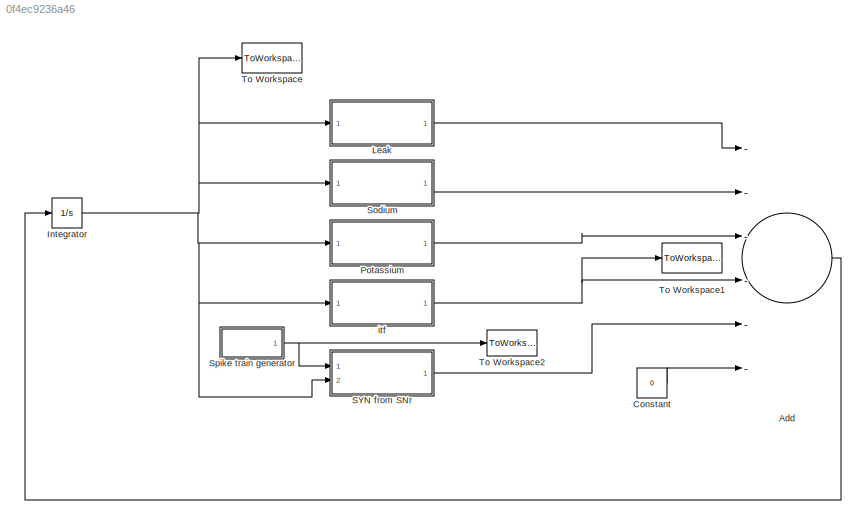
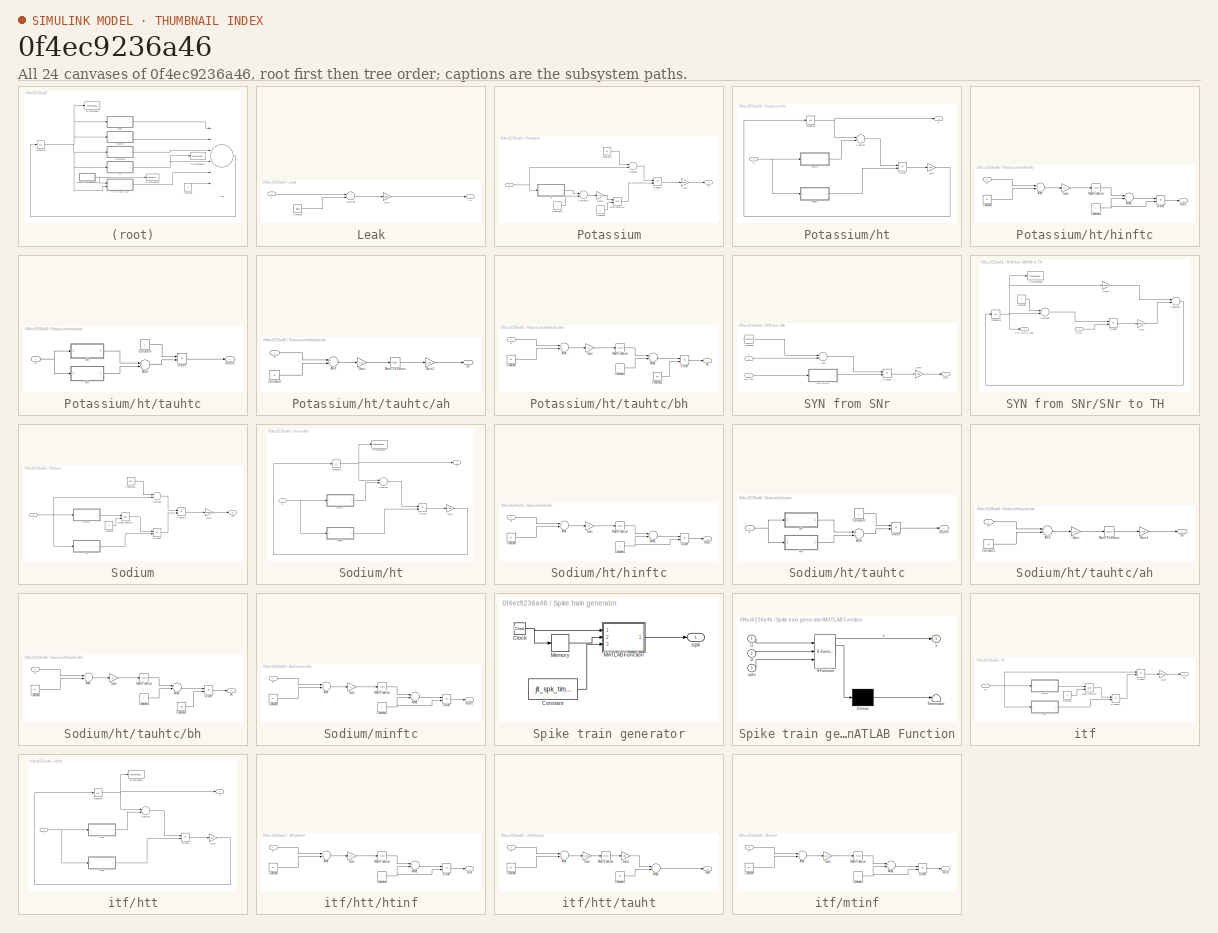
[diagram: thumbnail index - all 24 canvases of the model, root first then tree order]
MODEL slx_0f4ec9236a46
KIND model
CONFIG AbsTol = auto
CONFIG EnableMultiTasking = on
CONFIG FixedStep = stepsize
CONFIG MaxStep = stepsize
CONFIG MinStep = auto
CONFIG RelTol = 1e-2
CONFIG SampleTimeConstraint = Unconstrained
CONFIG Solver = ode4
CONFIG SolverName = ode4
CONFIG StartTime = 0.0
CONFIG StopTime = simtime
BLOCK [Sum] Add
  InputSameDT = off
  Inputs = ------
  OutDataTypeStr = Inherit: Inherit via internal rule
  Ports = [6, 1]
  SaturateOnIntegerOverflow = off
BLOCK [Constant] Constant
  Value = 0
BLOCK [Integrator] Integrator
  InitialCondition = vt0
  Ports = [1, 1]
BLOCK [SubSystem] Leak
  Ports = [1, 1]
  RequestExecContextInheritance = off
  Variant = off
BLOCK [Constant] Leak/Constant
  Value = eleak
BLOCK [Gain] Leak/Gain
  Gain = glbar
  OutDataTypeStr = Inherit: Inherit via internal rule
  ParamDataTypeStr = Inherit: Inherit via internal rule
  SaturateOnIntegerOverflow = off
BLOCK [Sum] Leak/Subtract
  InputSameDT = off
  Inputs = +-
  OutDataTypeStr = Inherit: Inherit via internal rule
  Ports = [2, 1]
  SaturateOnIntegerOverflow = off
BLOCK [Outport] Leak/ilf
  IconDisplay = Port number
BLOCK [Inport] Leak/v
  IconDisplay = Port number
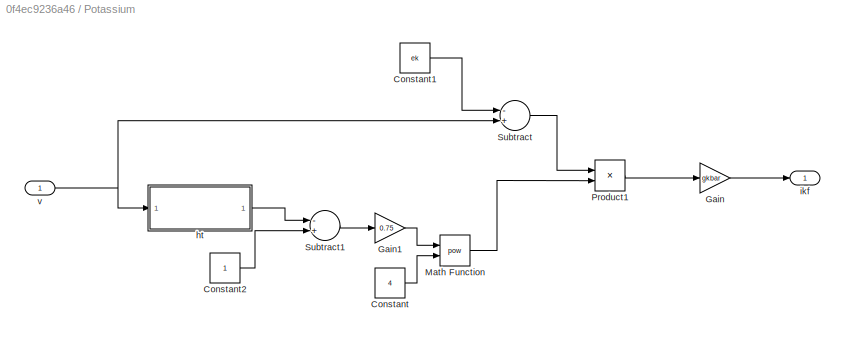
BLOCK [SubSystem] Potassium
  Ports = [1, 1]
  RequestExecContextInheritance = off
  Variant = off
BLOCK [Constant] Potassium/Constant
  Value = 4
BLOCK [Constant] Potassium/Constant1
  Value = ek
BLOCK [Constant] Potassium/Constant2
BLOCK [Gain] Potassium/Gain
  Gain = gkbar
  OutDataTypeStr = Inherit: Inherit via internal rule
  ParamDataTypeStr = Inherit: Inherit via internal rule
  SaturateOnIntegerOverflow = off
BLOCK [Gain] Potassium/Gain1
  Gain = 0.75
  OutDataTypeStr = Inherit: Inherit via internal rule
  ParamDataTypeStr = Inherit: Inherit via internal rule
  SaturateOnIntegerOverflow = off
BLOCK [Math] Potassium/Math Function
  Operator = pow
  Ports = [2, 1]
BLOCK [Product] Potassium/Product1
  InputSameDT = off
  OutDataTypeStr = Inherit: Inherit via internal rule
  Ports = [2, 1]
  RndMeth = Floor
  SaturateOnIntegerOverflow = off
BLOCK [Sum] Potassium/Subtract
  InputSameDT = off
  Inputs = -+
  OutDataTypeStr = Inherit: Inherit via internal rule
  Ports = [2, 1]
  SaturateOnIntegerOverflow = off
BLOCK [Sum] Potassium/Subtract1
  InputSameDT = off
  Inputs = -+
  OutDataTypeStr = Inherit: Inherit via internal rule
  Ports = [2, 1]
  SaturateOnIntegerOverflow = off
BLOCK [SubSystem] Potassium/ht
  Ports = [1, 1]
  RequestExecContextInheritance = off
  Variant = off
BLOCK [Product] Potassium/ht/Divide
  InputSameDT = off
  Inputs = */
  OutDataTypeStr = Inherit: Inherit via internal rule
  Ports = [2, 1]
  RndMeth = Floor
  SaturateOnIntegerOverflow = off
BLOCK [Gain] Potassium/ht/Gain
  Gain = tadj
  OutDataTypeStr = Inherit: Inherit via internal rule
  ParamDataTypeStr = Inherit: Inherit via internal rule
  SaturateOnIntegerOverflow = off
BLOCK [Integrator] Potassium/ht/Integrator
  InitialCondition = ht0
  Ports = [1, 1]
BLOCK [Sum] Potassium/ht/Subtract
  InputSameDT = off
  Inputs = -+
  OutDataTypeStr = Inherit: Inherit via internal rule
  Ports = [2, 1]
  SaturateOnIntegerOverflow = off
BLOCK [Outport] Potassium/ht/h
  IconDisplay = Port number
BLOCK [SubSystem] Potassium/ht/hinftc
  Ports = [1, 1]
  RequestExecContextInheritance = off
  Variant = off
BLOCK [Sum] Potassium/ht/hinftc/Add
  InputSameDT = off
  OutDataTypeStr = Inherit: Inherit via internal rule
  Ports = [2, 1]
  SaturateOnIntegerOverflow = off
BLOCK [Sum] Potassium/ht/hinftc/Add1
  InputSameDT = off
  OutDataTypeStr = Inherit: Inherit via internal rule
  Ports = [2, 1]
  SaturateOnIntegerOverflow = off
BLOCK [Constant] Potassium/ht/hinftc/Constant
  Value = 41
BLOCK [Constant] Potassium/ht/hinftc/Constant1
BLOCK [Product] Potassium/ht/hinftc/Divide
  InputSameDT = off
  Inputs = /*
  OutDataTypeStr = Inherit: Inherit via internal rule
  Ports = [2, 1]
  RndMeth = Floor
  SaturateOnIntegerOverflow = off
BLOCK [Gain] Potassium/ht/hinftc/Gain
  Gain = 1/4
  OutDataTypeStr = Inherit: Inherit via internal rule
  ParamDataTypeStr = Inherit: Inherit via internal rule
  SaturateOnIntegerOverflow = off
BLOCK [Math] Potassium/ht/hinftc/Math Function
  Ports = [1, 1]
BLOCK [Outport] Potassium/ht/hinftc/hinftc
  IconDisplay = Port number
BLOCK [Inport] Potassium/ht/hinftc/v
  IconDisplay = Port number
BLOCK [SubSystem] Potassium/ht/tauhtc
  Ports = [1, 1]
  RequestExecContextInheritance = off
  Variant = off
BLOCK [Sum] Potassium/ht/tauhtc/Add
  InputSameDT = off
  OutDataTypeStr = Inherit: Inherit via internal rule
  Ports = [2, 1]
  SaturateOnIntegerOverflow = off
BLOCK [Constant] Potassium/ht/tauhtc/Constant
BLOCK [Product] Potassium/ht/tauhtc/Divide
  InputSameDT = off
  Inputs = */
  OutDataTypeStr = Inherit: Inherit via internal rule
  Ports = [2, 1]
  RndMeth = Floor
  SaturateOnIntegerOverflow = off
BLOCK [SubSystem] Potassium/ht/tauhtc/ah
  Ports = [1, 1]
  RequestExecContextInheritance = off
  Variant = off
BLOCK [Sum] Potassium/ht/tauhtc/ah/Add
  InputSameDT = off
  OutDataTypeStr = Inherit: Inherit via internal rule
  Ports = [2, 1]
  SaturateOnIntegerOverflow = off
BLOCK [Constant] Potassium/ht/tauhtc/ah/Constant
  Value = 46
BLOCK [Gain] Potassium/ht/tauhtc/ah/Gain
  Gain = -1/18
  OutDataTypeStr = Inherit: Inherit via internal rule
  ParamDataTypeStr = Inherit: Inherit via internal rule
  SaturateOnIntegerOverflow = off
BLOCK [Gain] Potassium/ht/tauhtc/ah/Gain1
  Gain = 0.128
  OutDataTypeStr = Inherit: Inherit via internal rule
  ParamDataTypeStr = Inherit: Inherit via internal rule
  SaturateOnIntegerOverflow = off
BLOCK [Math] Potassium/ht/tauhtc/ah/Math Function
  Ports = [1, 1]
BLOCK [Outport] Potassium/ht/tauhtc/ah/ah
  IconDisplay = Port number
BLOCK [Inport] Potassium/ht/tauhtc/ah/v
  IconDisplay = Port number
BLOCK [SubSystem] Potassium/ht/tauhtc/bh
  Ports = [1, 1]
  RequestExecContextInheritance = off
  Variant = off
BLOCK [Sum] Potassium/ht/tauhtc/bh/Add
  InputSameDT = off
  OutDataTypeStr = Inherit: Inherit via internal rule
  Ports = [2, 1]
  SaturateOnIntegerOverflow = off
BLOCK [Sum] Potassium/ht/tauhtc/bh/Add1
  InputSameDT = off
  OutDataTypeStr = Inherit: Inherit via internal rule
  Ports = [2, 1]
  SaturateOnIntegerOverflow = off
BLOCK [Constant] Potassium/ht/tauhtc/bh/Constant
  Value = 23
BLOCK [Constant] Potassium/ht/tauhtc/bh/Constant1
BLOCK [Constant] Potassium/ht/tauhtc/bh/Constant2
  Value = apr
BLOCK [Product] Potassium/ht/tauhtc/bh/Divide
  InputSameDT = off
  Inputs = /*
  OutDataTypeStr = Inherit: Inherit via internal rule
  Ports = [2, 1]
  RndMeth = Floor
  SaturateOnIntegerOverflow = off
BLOCK [Gain] Potassium/ht/tauhtc/bh/Gain
  Gain = -1/5
  OutDataTypeStr = Inherit: Inherit via internal rule
  ParamDataTypeStr = Inherit: Inherit via internal rule
  SaturateOnIntegerOverflow = off
BLOCK [Math] Potassium/ht/tauhtc/bh/Math Function
  Ports = [1, 1]
BLOCK [Outport] Potassium/ht/tauhtc/bh/bh
  IconDisplay = Port number
BLOCK [Inport] Potassium/ht/tauhtc/bh/v
  IconDisplay = Port number
BLOCK [Outport] Potassium/ht/tauhtc/tauhtc
  IconDisplay = Port number
BLOCK [Inport] Potassium/ht/tauhtc/v
  IconDisplay = Port number
BLOCK [Inport] Potassium/ht/v
  IconDisplay = Port number
BLOCK [Outport] Potassium/ikf
  IconDisplay = Port number
BLOCK [Inport] Potassium/v
  IconDisplay = Port number
BLOCK [SubSystem] SYN from SNr
  Ports = [2, 1]
  RequestExecContextInheritance = off
  Variant = off
BLOCK [Sum] SYN from SNr/Add1
  InputSameDT = off
  Inputs = -+
  OutDataTypeStr = Inherit: Inherit via internal rule
  Ports = [2, 1]
  SaturateOnIntegerOverflow = off
BLOCK [Constant] SYN from SNr/Constant
  Value = vsynSNrtoTH
BLOCK [Gain] SYN from SNr/Gain
  Gain = gsynSNrtoTH
  OutDataTypeStr = Inherit: Inherit via internal rule
  ParamDataTypeStr = Inherit: Inherit via internal rule
  SaturateOnIntegerOverflow = off
BLOCK [Outport] SYN from SNr/Out1
  IconDisplay = Port number
BLOCK [Product] SYN from SNr/Product
  InputSameDT = off
  OutDataTypeStr = Inherit: Inherit via internal rule
  Ports = [2, 1]
  RndMeth = Floor
  SaturateOnIntegerOverflow = off
BLOCK [Inport] SYN from SNr/SNr NT
  IconDisplay = Port number
BLOCK [SubSystem] SYN from SNr/SNr to TH
  Ports = [1, 1]
  RequestExecContextInheritance = off
  Variant = off
BLOCK [Constant] SYN from SNr/SNr to TH/Constant
BLOCK [Gain] SYN from SNr/SNr to TH/Gain
  Gain = alphaSNrtoTH
  OutDataTypeStr = Inherit: Inherit via internal rule
  ParamDataTypeStr = Inherit: Inherit via internal rule
  SaturateOnIntegerOverflow = off
BLOCK [Gain] SYN from SNr/SNr to TH/Gain1
  Gain = betaSNrtoTH
  OutDataTypeStr = Inherit: Inherit via internal rule
  ParamDataTypeStr = Inherit: Inherit via internal rule
  SaturateOnIntegerOverflow = off
BLOCK [Integrator] SYN from SNr/SNr to TH/Integrator
  InitialCondition = s0SNrtoTH
  Ports = [1, 1]
BLOCK [Product] SYN from SNr/SNr to TH/Product
  InputSameDT = off
  OutDataTypeStr = Inherit: Inherit via internal rule
  Ports = [2, 1]
  RndMeth = Floor
  SaturateOnIntegerOverflow = off
BLOCK [Outport] SYN from SNr/SNr to TH/SNr to TH cond
  IconDisplay = Port number
BLOCK [Sum] SYN from SNr/SNr to TH/Subtract
  InputSameDT = off
  Inputs = +-
  OutDataTypeStr = Inherit: Inherit via internal rule
  Ports = [2, 1]
  SaturateOnIntegerOverflow = off
BLOCK [Sum] SYN from SNr/SNr to TH/Subtract2
  InputSameDT = off
  Inputs = -+
  OutDataTypeStr = Inherit: Inherit via internal rule
  Ports = [2, 1]
  SaturateOnIntegerOverflow = off
BLOCK [ToWorkspace] SYN from SNr/SNr to TH/To Workspace
  MaxDataPoints = inf
  Ports = [1]
  SampleTime = -1
  SaveFormat = Structure With Time
  VariableName = s_SNrtoTH
BLOCK [Inport] SYN from SNr/SNr to TH/s SNr
  IconDisplay = Port number
BLOCK [Inport] SYN from SNr/v
  IconDisplay = Port number
  Port = 2
BLOCK [SubSystem] Sodium
  Ports = [1, 1]
  RequestExecContextInheritance = off
  Variant = off
BLOCK [Constant] Sodium/Constant
  Value = 3
BLOCK [Constant] Sodium/Constant1
  Value = ena
BLOCK [Gain] Sodium/Gain
  Gain = gnabar
  OutDataTypeStr = Inherit: Inherit via internal rule
  ParamDataTypeStr = Inherit: Inherit via internal rule
  SaturateOnIntegerOverflow = off
BLOCK [Math] Sodium/Math Function
  Operator = pow
  Ports = [2, 1]
BLOCK [Product] Sodium/Product
  InputSameDT = off
  OutDataTypeStr = Inherit: Inherit via internal rule
  Ports = [2, 1]
  RndMeth = Floor
  SaturateOnIntegerOverflow = off
BLOCK [Product] Sodium/Product1
  InputSameDT = off
  OutDataTypeStr = Inherit: Inherit via internal rule
  Ports = [2, 1]
  RndMeth = Floor
  SaturateOnIntegerOverflow = off
BLOCK [Sum] Sodium/Subtract
  InputSameDT = off
  Inputs = -+
  OutDataTypeStr = Inherit: Inherit via internal rule
  Ports = [2, 1]
  SaturateOnIntegerOverflow = off
BLOCK [SubSystem] Sodium/ht
  Ports = [1, 1]
  RequestExecContextInheritance = off
  Variant = off
BLOCK [Product] Sodium/ht/Divide
  InputSameDT = off
  Inputs = */
  OutDataTypeStr = Inherit: Inherit via internal rule
  Ports = [2, 1]
  RndMeth = Floor
  SaturateOnIntegerOverflow = off
BLOCK [Gain] Sodium/ht/Gain
  Gain = tadj
  OutDataTypeStr = Inherit: Inherit via internal rule
  ParamDataTypeStr = Inherit: Inherit via internal rule
  SaturateOnIntegerOverflow = off
BLOCK [Integrator] Sodium/ht/Integrator
  InitialCondition = ht0
  Ports = [1, 1]
BLOCK [Sum] Sodium/ht/Subtract
  InputSameDT = off
  Inputs = -+
  OutDataTypeStr = Inherit: Inherit via internal rule
  Ports = [2, 1]
  SaturateOnIntegerOverflow = off
BLOCK [ToWorkspace] Sodium/ht/To Workspace
  MaxDataPoints = inf
  Ports = [1]
  SampleTime = -1
  SaveFormat = Structure With Time
  VariableName = ht
BLOCK [Outport] Sodium/ht/h
  IconDisplay = Port number
BLOCK [SubSystem] Sodium/ht/hinftc
  Ports = [1, 1]
  RequestExecContextInheritance = off
  Variant = off
BLOCK [Sum] Sodium/ht/hinftc/Add
  InputSameDT = off
  OutDataTypeStr = Inherit: Inherit via internal rule
  Ports = [2, 1]
  SaturateOnIntegerOverflow = off
BLOCK [Sum] Sodium/ht/hinftc/Add1
  InputSameDT = off
  OutDataTypeStr = Inherit: Inherit via internal rule
  Ports = [2, 1]
  SaturateOnIntegerOverflow = off
BLOCK [Constant] Sodium/ht/hinftc/Constant
  Value = 41
BLOCK [Constant] Sodium/ht/hinftc/Constant1
BLOCK [Product] Sodium/ht/hinftc/Divide
  InputSameDT = off
  Inputs = /*
  OutDataTypeStr = Inherit: Inherit via internal rule
  Ports = [2, 1]
  RndMeth = Floor
  SaturateOnIntegerOverflow = off
BLOCK [Gain] Sodium/ht/hinftc/Gain
  Gain = 1/4
  OutDataTypeStr = Inherit: Inherit via internal rule
  ParamDataTypeStr = Inherit: Inherit via internal rule
  SaturateOnIntegerOverflow = off
BLOCK [Math] Sodium/ht/hinftc/Math Function
  Ports = [1, 1]
BLOCK [Outport] Sodium/ht/hinftc/hinftc
  IconDisplay = Port number
BLOCK [Inport] Sodium/ht/hinftc/v
  IconDisplay = Port number
BLOCK [SubSystem] Sodium/ht/tauhtc
  Ports = [1, 1]
  RequestExecContextInheritance = off
  Variant = off
BLOCK [Sum] Sodium/ht/tauhtc/Add
  InputSameDT = off
  OutDataTypeStr = Inherit: Inherit via internal rule
  Ports = [2, 1]
  SaturateOnIntegerOverflow = off
BLOCK [Constant] Sodium/ht/tauhtc/Constant
BLOCK [Product] Sodium/ht/tauhtc/Divide
  InputSameDT = off
  Inputs = */
  OutDataTypeStr = Inherit: Inherit via internal rule
  Ports = [2, 1]
  RndMeth = Floor
  SaturateOnIntegerOverflow = off
BLOCK [SubSystem] Sodium/ht/tauhtc/ah
  Ports = [1, 1]
  RequestExecContextInheritance = off
  Variant = off
BLOCK [Sum] Sodium/ht/tauhtc/ah/Add
  InputSameDT = off
  OutDataTypeStr = Inherit: Inherit via internal rule
  Ports = [2, 1]
  SaturateOnIntegerOverflow = off
BLOCK [Constant] Sodium/ht/tauhtc/ah/Constant
  Value = 46
BLOCK [Gain] Sodium/ht/tauhtc/ah/Gain
  Gain = -1/18
  OutDataTypeStr = Inherit: Inherit via internal rule
  ParamDataTypeStr = Inherit: Inherit via internal rule
  SaturateOnIntegerOverflow = off
BLOCK [Gain] Sodium/ht/tauhtc/ah/Gain1
  Gain = 0.128
  OutDataTypeStr = Inherit: Inherit via internal rule
  ParamDataTypeStr = Inherit: Inherit via internal rule
  SaturateOnIntegerOverflow = off
BLOCK [Math] Sodium/ht/tauhtc/ah/Math Function
  Ports = [1, 1]
BLOCK [Outport] Sodium/ht/tauhtc/ah/ah
  IconDisplay = Port number
BLOCK [Inport] Sodium/ht/tauhtc/ah/v
  IconDisplay = Port number
BLOCK [SubSystem] Sodium/ht/tauhtc/bh
  Ports = [1, 1]
  RequestExecContextInheritance = off
  Variant = off
BLOCK [Sum] Sodium/ht/tauhtc/bh/Add
  InputSameDT = off
  OutDataTypeStr = Inherit: Inherit via internal rule
  Ports = [2, 1]
  SaturateOnIntegerOverflow = off
BLOCK [Sum] Sodium/ht/tauhtc/bh/Add1
  InputSameDT = off
  OutDataTypeStr = Inherit: Inherit via internal rule
  Ports = [2, 1]
  SaturateOnIntegerOverflow = off
BLOCK [Constant] Sodium/ht/tauhtc/bh/Constant
  Value = 23
BLOCK [Constant] Sodium/ht/tauhtc/bh/Constant1
BLOCK [Constant] Sodium/ht/tauhtc/bh/Constant2
  Value = apr
BLOCK [Product] Sodium/ht/tauhtc/bh/Divide
  InputSameDT = off
  Inputs = /*
  OutDataTypeStr = Inherit: Inherit via internal rule
  Ports = [2, 1]
  RndMeth = Floor
  SaturateOnIntegerOverflow = off
BLOCK [Gain] Sodium/ht/tauhtc/bh/Gain
  Gain = -1/5
  OutDataTypeStr = Inherit: Inherit via internal rule
  ParamDataTypeStr = Inherit: Inherit via internal rule
  SaturateOnIntegerOverflow = off
BLOCK [Math] Sodium/ht/tauhtc/bh/Math Function
  Ports = [1, 1]
BLOCK [Outport] Sodium/ht/tauhtc/bh/bh
  IconDisplay = Port number
BLOCK [Inport] Sodium/ht/tauhtc/bh/v
  IconDisplay = Port number
BLOCK [Outport] Sodium/ht/tauhtc/tauhtc
  IconDisplay = Port number
BLOCK [Inport] Sodium/ht/tauhtc/v
  IconDisplay = Port number
BLOCK [Inport] Sodium/ht/v
  IconDisplay = Port number
BLOCK [Outport] Sodium/inaf
  IconDisplay = Port number
BLOCK [SubSystem] Sodium/minftc
  Ports = [1, 1]
  RequestExecContextInheritance = off
  Variant = off
BLOCK [Sum] Sodium/minftc/Add
  InputSameDT = off
  OutDataTypeStr = Inherit: Inherit via internal rule
  Ports = [2, 1]
  SaturateOnIntegerOverflow = off
BLOCK [Sum] Sodium/minftc/Add1
  InputSameDT = off
  OutDataTypeStr = Inherit: Inherit via internal rule
  Ports = [2, 1]
  SaturateOnIntegerOverflow = off
BLOCK [Constant] Sodium/minftc/Constant
  Value = 37
BLOCK [Constant] Sodium/minftc/Constant1
BLOCK [Product] Sodium/minftc/Divide
  InputSameDT = off
  Inputs = /*
  OutDataTypeStr = Inherit: Inherit via internal rule
  Ports = [2, 1]
  RndMeth = Floor
  SaturateOnIntegerOverflow = off
BLOCK [Gain] Sodium/minftc/Gain
  Gain = -1/7
  OutDataTypeStr = Inherit: Inherit via internal rule
  ParamDataTypeStr = Inherit: Inherit via internal rule
  SaturateOnIntegerOverflow = off
BLOCK [Math] Sodium/minftc/Math Function
  Ports = [1, 1]
BLOCK [Outport] Sodium/minftc/minftc
  IconDisplay = Port number
BLOCK [Inport] Sodium/minftc/v
  IconDisplay = Port number
BLOCK [Inport] Sodium/v
  IconDisplay = Port number
BLOCK [SubSystem] Spike train generator
  Ports = [0, 1]
  RequestExecContextInheritance = off
  Variant = off
BLOCK [Clock] Spike train generator/Clock
BLOCK [Constant] Spike train generator/Constant
  Value = jit_spk_times
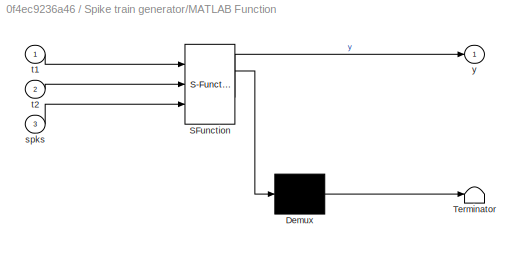
BLOCK [SubSystem] Spike train generator/MATLAB Function
  ErrorFcn = Stateflow.Translate.translate
  PermitHierarchicalResolution = ExplicitOnly
  Ports = [3, 1]
  RequestExecContextInheritance = off
  SFBlockType = MATLAB Function
  TreatAsAtomicUnit = on
  Variant = off
BLOCK [Demux] Spike train generator/MATLAB Function/ Demux 
  Outputs = 1
  Ports = [1, 1]
BLOCK [S-Function] Spike train generator/MATLAB Function/ SFunction 
  EnableBusSupport = off
  FunctionName = sf_sfun
  PortCounts = [3 2]
  Ports = [3, 2]
  SFcnIsStateOwnerBlock = off
  SFunctionDeploymentMode = off
  Tag = Stateflow S-Function TC_RT2004_pois_CX_SNr 2
BLOCK [Terminator] Spike train generator/MATLAB Function/ Terminator 
BLOCK [Inport] Spike train generator/MATLAB Function/spks
  IconDisplay = Port number
  Port = 3
BLOCK [Inport] Spike train generator/MATLAB Function/t1
  IconDisplay = Port number
BLOCK [Inport] Spike train generator/MATLAB Function/t2
  IconDisplay = Port number
  Port = 2
BLOCK [Outport] Spike train generator/MATLAB Function/y
  IconDisplay = Port number
BLOCK [Memory] Spike train generator/Memory
BLOCK [Outport] Spike train generator/spk
  IconDisplay = Port number
BLOCK [ToWorkspace] To Workspace
  MaxDataPoints = inf
  Ports = [1]
  SampleTime = -1
  SaveFormat = Structure With Time
  VariableName = vth
BLOCK [ToWorkspace] To Workspace1
  MaxDataPoints = inf
  Ports = [1]
  SampleTime = -1
  SaveFormat = Structure With Time
  VariableName = Ica
BLOCK [ToWorkspace] To Workspace2
  MaxDataPoints = inf
  Ports = [1]
  SampleTime = -1
  SaveFormat = Structure With Time
  VariableName = I_SNrtoTH
BLOCK [SubSystem] itf
  Ports = [1, 1]
  RequestExecContextInheritance = off
  Variant = off
BLOCK [Constant] itf/Constant
  Value = 2
BLOCK [Gain] itf/Gain
  Gain = gtbar
  OutDataTypeStr = Inherit: Inherit via internal rule
  ParamDataTypeStr = Inherit: Inherit via internal rule
  SaturateOnIntegerOverflow = off
BLOCK [Inport] itf/In1
  IconDisplay = Port number
BLOCK [Math] itf/Math Function
  Operator = pow
  Ports = [2, 1]
BLOCK [Product] itf/Product
  InputSameDT = off
  OutDataTypeStr = Inherit: Inherit via internal rule
  Ports = [2, 1]
  RndMeth = Floor
  SaturateOnIntegerOverflow = off
BLOCK [Product] itf/Product1
  InputSameDT = off
  OutDataTypeStr = Inherit: Inherit via internal rule
  Ports = [2, 1]
  RndMeth = Floor
  SaturateOnIntegerOverflow = off
BLOCK [SubSystem] itf/htt
  Ports = [1, 1]
  RequestExecContextInheritance = off
  Variant = off
BLOCK [Product] itf/htt/Divide
  InputSameDT = off
  Inputs = */
  OutDataTypeStr = Inherit: Inherit via internal rule
  Ports = [2, 1]
  RndMeth = Floor
  SaturateOnIntegerOverflow = off
BLOCK [Gain] itf/htt/Gain
  Gain = qht
  OutDataTypeStr = Inherit: Inherit via internal rule
  ParamDataTypeStr = Inherit: Inherit via internal rule
  SaturateOnIntegerOverflow = off
BLOCK [Integrator] itf/htt/Integrator
  InitialCondition = htt0
  Ports = [1, 1]
BLOCK [Sum] itf/htt/Subtract
  InputSameDT = off
  Inputs = -+
  OutDataTypeStr = Inherit: Inherit via internal rule
  Ports = [2, 1]
  SaturateOnIntegerOverflow = off
BLOCK [ToWorkspace] itf/htt/To Workspace
  MaxDataPoints = inf
  Ports = [1]
  SampleTime = -1
  SaveFormat = Structure With Time
  VariableName = htt
BLOCK [Outport] itf/htt/h
  IconDisplay = Port number
BLOCK [SubSystem] itf/htt/htinf
  Ports = [1, 1]
  RequestExecContextInheritance = off
  Variant = off
BLOCK [Sum] itf/htt/htinf/Add
  InputSameDT = off
  OutDataTypeStr = Inherit: Inherit via internal rule
  Ports = [2, 1]
  SaturateOnIntegerOverflow = off
BLOCK [Sum] itf/htt/htinf/Add1
  InputSameDT = off
  OutDataTypeStr = Inherit: Inherit via internal rule
  Ports = [2, 1]
  SaturateOnIntegerOverflow = off
BLOCK [Constant] itf/htt/htinf/Constant
  Value = 84
BLOCK [Constant] itf/htt/htinf/Constant1
BLOCK [Product] itf/htt/htinf/Divide
  InputSameDT = off
  Inputs = /*
  OutDataTypeStr = Inherit: Inherit via internal rule
  Ports = [2, 1]
  RndMeth = Floor
  SaturateOnIntegerOverflow = off
BLOCK [Gain] itf/htt/htinf/Gain
  Gain = 1/4
  OutDataTypeStr = Inherit: Inherit via internal rule
  ParamDataTypeStr = Inherit: Inherit via internal rule
  SaturateOnIntegerOverflow = off
BLOCK [Math] itf/htt/htinf/Math Function
  Ports = [1, 1]
BLOCK [Outport] itf/htt/htinf/htinf
  IconDisplay = Port number
BLOCK [Inport] itf/htt/htinf/v
  IconDisplay = Port number
BLOCK [SubSystem] itf/htt/tauht
  Ports = [1, 1]
  RequestExecContextInheritance = off
  Variant = off
BLOCK [Sum] itf/htt/tauht/Add
  InputSameDT = off
  OutDataTypeStr = Inherit: Inherit via internal rule
  Ports = [2, 1]
  SaturateOnIntegerOverflow = off
BLOCK [Sum] itf/htt/tauht/Add1
  InputSameDT = off
  OutDataTypeStr = Inherit: Inherit via internal rule
  Ports = [2, 1]
  SaturateOnIntegerOverflow = off
BLOCK [Constant] itf/htt/tauht/Constant
  Value = 25
BLOCK [Constant] itf/htt/tauht/Constant1
  Value = 28
BLOCK [Gain] itf/htt/tauht/Gain
  Gain = -1/10.5
  OutDataTypeStr = Inherit: Inherit via internal rule
  ParamDataTypeStr = Inherit: Inherit via internal rule
  SaturateOnIntegerOverflow = off
BLOCK [Gain] itf/htt/tauht/Gain1
  Gain = apt
  OutDataTypeStr = Inherit: Inherit via internal rule
  ParamDataTypeStr = Inherit: Inherit via internal rule
  SaturateOnIntegerOverflow = off
BLOCK [Math] itf/htt/tauht/Math Function
  Ports = [1, 1]
BLOCK [Outport] itf/htt/tauht/tauht
  IconDisplay = Port number
BLOCK [Inport] itf/htt/tauht/v
  IconDisplay = Port number
BLOCK [Inport] itf/htt/v
  IconDisplay = Port number
BLOCK [Outport] itf/itf
  IconDisplay = Port number
BLOCK [SubSystem] itf/mtinf
  Ports = [1, 1]
  RequestExecContextInheritance = off
  Variant = off
BLOCK [Sum] itf/mtinf/Add
  InputSameDT = off
  OutDataTypeStr = Inherit: Inherit via internal rule
  Ports = [2, 1]
  SaturateOnIntegerOverflow = off
BLOCK [Sum] itf/mtinf/Add1
  InputSameDT = off
  OutDataTypeStr = Inherit: Inherit via internal rule
  Ports = [2, 1]
  SaturateOnIntegerOverflow = off
BLOCK [Constant] itf/mtinf/Constant
  Value = 60
BLOCK [Constant] itf/mtinf/Constant1
BLOCK [Product] itf/mtinf/Divide
  InputSameDT = off
  Inputs = /*
  OutDataTypeStr = Inherit: Inherit via internal rule
  Ports = [2, 1]
  RndMeth = Floor
  SaturateOnIntegerOverflow = off
BLOCK [Gain] itf/mtinf/Gain
  Gain = -1/6.2
  OutDataTypeStr = Inherit: Inherit via internal rule
  ParamDataTypeStr = Inherit: Inherit via internal rule
  SaturateOnIntegerOverflow = off
BLOCK [Math] itf/mtinf/Math Function
  Ports = [1, 1]
BLOCK [Outport] itf/mtinf/mtinf
  IconDisplay = Port number
BLOCK [Inport] itf/mtinf/v
  IconDisplay = Port number
LINE Add:1 -> Integrator:1
LINE Constant:1 -> Add:6
NET Integrator:1 -> Leak:1, Potassium:1, SYN from SNr:2, Sodium:1, To Workspace:1, itf:1
LINE Leak/Constant:1 -> Leak/Subtract:2
LINE Leak/Gain:1 -> Leak/ilf:1
LINE Leak/Subtract:1 -> Leak/Gain:1
LINE Leak/v:1 -> Leak/Subtract:1
LINE Leak:1 -> Add:1
LINE Potassium/Constant1:1 -> Potassium/Subtract:1
LINE Potassium/Constant2:1 -> Potassium/Subtract1:2
LINE Potassium/Constant:1 -> Potassium/Math Function:2
LINE Potassium/Gain1:1 -> Potassium/Math Function:1
LINE Potassium/Gain:1 -> Potassium/ikf:1
LINE Potassium/Math Function:1 -> Potassium/Product1:2
LINE Potassium/Product1:1 -> Potassium/Gain:1
LINE Potassium/Subtract1:1 -> Potassium/Gain1:1
LINE Potassium/Subtract:1 -> Potassium/Product1:1
LINE Potassium/ht/Divide:1 -> Potassium/ht/Gain:1
LINE Potassium/ht/Gain:1 -> Potassium/ht/Integrator:1
NET Potassium/ht/Integrator:1 -> Potassium/ht/Subtract:1, Potassium/ht/h:1
LINE Potassium/ht/Subtract:1 -> Potassium/ht/Divide:1
LINE Potassium/ht/hinftc/Add1:1 -> Potassium/ht/hinftc/Divide:1
LINE Potassium/ht/hinftc/Add:1 -> Potassium/ht/hinftc/Gain:1
NET Potassium/ht/hinftc/Constant1:1 -> Potassium/ht/hinftc/Add1:2, Potassium/ht/hinftc/Divide:2
LINE Potassium/ht/hinftc/Constant:1 -> Potassium/ht/hinftc/Add:2
LINE Potassium/ht/hinftc/Divide:1 -> Potassium/ht/hinftc/hinftc:1
LINE Potassium/ht/hinftc/Gain:1 -> Potassium/ht/hinftc/Math Function:1
LINE Potassium/ht/hinftc/Math Function:1 -> Potassium/ht/hinftc/Add1:1
LINE Potassium/ht/hinftc/v:1 -> Potassium/ht/hinftc/Add:1
LINE Potassium/ht/hinftc:1 -> Potassium/ht/Subtract:2
LINE Potassium/ht/tauhtc/Add:1 -> Potassium/ht/tauhtc/Divide:2
LINE Potassium/ht/tauhtc/Constant:1 -> Potassium/ht/tauhtc/Divide:1
LINE Potassium/ht/tauhtc/Divide:1 -> Potassium/ht/tauhtc/tauhtc:1
LINE Potassium/ht/tauhtc/ah/Add:1 -> Potassium/ht/tauhtc/ah/Gain:1
LINE Potassium/ht/tauhtc/ah/Constant:1 -> Potassium/ht/tauhtc/ah/Add:2
LINE Potassium/ht/tauhtc/ah/Gain1:1 -> Potassium/ht/tauhtc/ah/ah:1
LINE Potassium/ht/tauhtc/ah/Gain:1 -> Potassium/ht/tauhtc/ah/Math Function:1
LINE Potassium/ht/tauhtc/ah/Math Function:1 -> Potassium/ht/tauhtc/ah/Gain1:1
LINE Potassium/ht/tauhtc/ah/v:1 -> Potassium/ht/tauhtc/ah/Add:1
LINE Potassium/ht/tauhtc/ah:1 -> Potassium/ht/tauhtc/Add:1
LINE Potassium/ht/tauhtc/bh/Add1:1 -> Potassium/ht/tauhtc/bh/Divide:1
LINE Potassium/ht/tauhtc/bh/Add:1 -> Potassium/ht/tauhtc/bh/Gain:1
LINE Potassium/ht/tauhtc/bh/Constant1:1 -> Potassium/ht/tauhtc/bh/Add1:2
LINE Potassium/ht/tauhtc/bh/Constant2:1 -> Potassium/ht/tauhtc/bh/Divide:2
LINE Potassium/ht/tauhtc/bh/Constant:1 -> Potassium/ht/tauhtc/bh/Add:2
LINE Potassium/ht/tauhtc/bh/Divide:1 -> Potassium/ht/tauhtc/bh/bh:1
LINE Potassium/ht/tauhtc/bh/Gain:1 -> Potassium/ht/tauhtc/bh/Math Function:1
LINE Potassium/ht/tauhtc/bh/Math Function:1 -> Potassium/ht/tauhtc/bh/Add1:1
LINE Potassium/ht/tauhtc/bh/v:1 -> Potassium/ht/tauhtc/bh/Add:1
LINE Potassium/ht/tauhtc/bh:1 -> Potassium/ht/tauhtc/Add:2
NET Potassium/ht/tauhtc/v:1 -> Potassium/ht/tauhtc/ah:1, Potassium/ht/tauhtc/bh:1
LINE Potassium/ht/tauhtc:1 -> Potassium/ht/Divide:2
NET Potassium/ht/v:1 -> Potassium/ht/hinftc:1, Potassium/ht/tauhtc:1
LINE Potassium/ht:1 -> Potassium/Subtract1:1
NET Potassium/v:1 -> Potassium/Subtract:2, Potassium/ht:1
LINE Potassium:1 -> Add:3
LINE SYN from SNr/Add1:1 -> SYN from SNr/Product:1
LINE SYN from SNr/Constant:1 -> SYN from SNr/Add1:1
LINE SYN from SNr/Gain:1 -> SYN from SNr/Out1:1
LINE SYN from SNr/Product:1 -> SYN from SNr/Gain:1
LINE SYN from SNr/SNr NT:1 -> SYN from SNr/SNr to TH:1
LINE SYN from SNr/SNr to TH/Constant:1 -> SYN from SNr/SNr to TH/Subtract:1
LINE SYN from SNr/SNr to TH/Gain1:1 -> SYN from SNr/SNr to TH/Subtract2:1
LINE SYN from SNr/SNr to TH/Gain:1 -> SYN from SNr/SNr to TH/Subtract2:2
NET SYN from SNr/SNr to TH/Integrator:1 -> SYN from SNr/SNr to TH/Gain1:1, SYN from SNr/SNr to TH/SNr to TH cond:1, SYN from SNr/SNr to TH/Subtract:2, SYN from SNr/SNr to TH/To Workspace:1
LINE SYN from SNr/SNr to TH/Product:1 -> SYN from SNr/SNr to TH/Gain:1
LINE SYN from SNr/SNr to TH/Subtract2:1 -> SYN from SNr/SNr to TH/Integrator:1
LINE SYN from SNr/SNr to TH/Subtract:1 -> SYN from SNr/SNr to TH/Product:1
LINE SYN from SNr/SNr to TH/s SNr:1 -> SYN from SNr/SNr to TH/Product:2
LINE SYN from SNr/SNr to TH:1 -> SYN from SNr/Product:2
LINE SYN from SNr/v:1 -> SYN from SNr/Add1:2
LINE SYN from SNr:1 -> Add:5
LINE Sodium/Constant1:1 -> Sodium/Subtract:1
LINE Sodium/Constant:1 -> Sodium/Math Function:2
LINE Sodium/Gain:1 -> Sodium/inaf:1
LINE Sodium/Math Function:1 -> Sodium/Product:1
LINE Sodium/Product1:1 -> Sodium/Gain:1
LINE Sodium/Product:1 -> Sodium/Product1:2
LINE Sodium/Subtract:1 -> Sodium/Product1:1
LINE Sodium/ht/Divide:1 -> Sodium/ht/Gain:1
LINE Sodium/ht/Gain:1 -> Sodium/ht/Integrator:1
NET Sodium/ht/Integrator:1 -> Sodium/ht/Subtract:1, Sodium/ht/To Workspace:1, Sodium/ht/h:1
LINE Sodium/ht/Subtract:1 -> Sodium/ht/Divide:1
LINE Sodium/ht/hinftc/Add1:1 -> Sodium/ht/hinftc/Divide:1
LINE Sodium/ht/hinftc/Add:1 -> Sodium/ht/hinftc/Gain:1
NET Sodium/ht/hinftc/Constant1:1 -> Sodium/ht/hinftc/Add1:2, Sodium/ht/hinftc/Divide:2
LINE Sodium/ht/hinftc/Constant:1 -> Sodium/ht/hinftc/Add:2
LINE Sodium/ht/hinftc/Divide:1 -> Sodium/ht/hinftc/hinftc:1
LINE Sodium/ht/hinftc/Gain:1 -> Sodium/ht/hinftc/Math Function:1
LINE Sodium/ht/hinftc/Math Function:1 -> Sodium/ht/hinftc/Add1:1
LINE Sodium/ht/hinftc/v:1 -> Sodium/ht/hinftc/Add:1
LINE Sodium/ht/hinftc:1 -> Sodium/ht/Subtract:2
LINE Sodium/ht/tauhtc/Add:1 -> Sodium/ht/tauhtc/Divide:2
LINE Sodium/ht/tauhtc/Constant:1 -> Sodium/ht/tauhtc/Divide:1
LINE Sodium/ht/tauhtc/Divide:1 -> Sodium/ht/tauhtc/tauhtc:1
LINE Sodium/ht/tauhtc/ah/Add:1 -> Sodium/ht/tauhtc/ah/Gain:1
LINE Sodium/ht/tauhtc/ah/Constant:1 -> Sodium/ht/tauhtc/ah/Add:2
LINE Sodium/ht/tauhtc/ah/Gain1:1 -> Sodium/ht/tauhtc/ah/ah:1
LINE Sodium/ht/tauhtc/ah/Gain:1 -> Sodium/ht/tauhtc/ah/Math Function:1
LINE Sodium/ht/tauhtc/ah/Math Function:1 -> Sodium/ht/tauhtc/ah/Gain1:1
LINE Sodium/ht/tauhtc/ah/v:1 -> Sodium/ht/tauhtc/ah/Add:1
LINE Sodium/ht/tauhtc/ah:1 -> Sodium/ht/tauhtc/Add:1
LINE Sodium/ht/tauhtc/bh/Add1:1 -> Sodium/ht/tauhtc/bh/Divide:1
LINE Sodium/ht/tauhtc/bh/Add:1 -> Sodium/ht/tauhtc/bh/Gain:1
LINE Sodium/ht/tauhtc/bh/Constant1:1 -> Sodium/ht/tauhtc/bh/Add1:2
LINE Sodium/ht/tauhtc/bh/Constant2:1 -> Sodium/ht/tauhtc/bh/Divide:2
LINE Sodium/ht/tauhtc/bh/Constant:1 -> Sodium/ht/tauhtc/bh/Add:2
LINE Sodium/ht/tauhtc/bh/Divide:1 -> Sodium/ht/tauhtc/bh/bh:1
LINE Sodium/ht/tauhtc/bh/Gain:1 -> Sodium/ht/tauhtc/bh/Math Function:1
LINE Sodium/ht/tauhtc/bh/Math Function:1 -> Sodium/ht/tauhtc/bh/Add1:1
LINE Sodium/ht/tauhtc/bh/v:1 -> Sodium/ht/tauhtc/bh/Add:1
LINE Sodium/ht/tauhtc/bh:1 -> Sodium/ht/tauhtc/Add:2
NET Sodium/ht/tauhtc/v:1 -> Sodium/ht/tauhtc/ah:1, Sodium/ht/tauhtc/bh:1
LINE Sodium/ht/tauhtc:1 -> Sodium/ht/Divide:2
NET Sodium/ht/v:1 -> Sodium/ht/hinftc:1, Sodium/ht/tauhtc:1
LINE Sodium/ht:1 -> Sodium/Product:2
LINE Sodium/minftc/Add1:1 -> Sodium/minftc/Divide:1
LINE Sodium/minftc/Add:1 -> Sodium/minftc/Gain:1
NET Sodium/minftc/Constant1:1 -> Sodium/minftc/Add1:2, Sodium/minftc/Divide:2
LINE Sodium/minftc/Constant:1 -> Sodium/minftc/Add:2
LINE Sodium/minftc/Divide:1 -> Sodium/minftc/minftc:1
LINE Sodium/minftc/Gain:1 -> Sodium/minftc/Math Function:1
LINE Sodium/minftc/Math Function:1 -> Sodium/minftc/Add1:1
LINE Sodium/minftc/v:1 -> Sodium/minftc/Add:1
LINE Sodium/minftc:1 -> Sodium/Math Function:1
NET Sodium/v:1 -> Sodium/Subtract:2, Sodium/ht:1, Sodium/minftc:1
LINE Sodium:1 -> Add:2
NET Spike train generator/Clock:1 -> Spike train generator/MATLAB Function:1, Spike train generator/Memory:1
LINE Spike train generator/Constant:1 -> Spike train generator/MATLAB Function:3
LINE Spike train generator/MATLAB Function:1 -> Spike train generator/spk:1
LINE Spike train generator/Memory:1 -> Spike train generator/MATLAB Function:2
NET Spike train generator:1 -> SYN from SNr:1, To Workspace2:1
LINE itf/Constant:1 -> itf/Math Function:2
LINE itf/Gain:1 -> itf/itf:1
NET itf/In1:1 -> itf/Product:1, itf/htt:1, itf/mtinf:1
LINE itf/Math Function:1 -> itf/Product1:1
LINE itf/Product1:1 -> itf/Product:2
LINE itf/Product:1 -> itf/Gain:1
LINE itf/htt/Divide:1 -> itf/htt/Gain:1
LINE itf/htt/Gain:1 -> itf/htt/Integrator:1
NET itf/htt/Integrator:1 -> itf/htt/Subtract:1, itf/htt/To Workspace:1, itf/htt/h:1
LINE itf/htt/Subtract:1 -> itf/htt/Divide:1
LINE itf/htt/htinf/Add1:1 -> itf/htt/htinf/Divide:1
LINE itf/htt/htinf/Add:1 -> itf/htt/htinf/Gain:1
NET itf/htt/htinf/Constant1:1 -> itf/htt/htinf/Add1:2, itf/htt/htinf/Divide:2
LINE itf/htt/htinf/Constant:1 -> itf/htt/htinf/Add:2
LINE itf/htt/htinf/Divide:1 -> itf/htt/htinf/htinf:1
LINE itf/htt/htinf/Gain:1 -> itf/htt/htinf/Math Function:1
LINE itf/htt/htinf/Math Function:1 -> itf/htt/htinf/Add1:1
LINE itf/htt/htinf/v:1 -> itf/htt/htinf/Add:1
LINE itf/htt/htinf:1 -> itf/htt/Subtract:2
LINE itf/htt/tauht/Add1:1 -> itf/htt/tauht/tauht:1
LINE itf/htt/tauht/Add:1 -> itf/htt/tauht/Gain:1
LINE itf/htt/tauht/Constant1:1 -> itf/htt/tauht/Add1:2
LINE itf/htt/tauht/Constant:1 -> itf/htt/tauht/Add:2
LINE itf/htt/tauht/Gain1:1 -> itf/htt/tauht/Add1:1
LINE itf/htt/tauht/Gain:1 -> itf/htt/tauht/Math Function:1
LINE itf/htt/tauht/Math Function:1 -> itf/htt/tauht/Gain1:1
LINE itf/htt/tauht/v:1 -> itf/htt/tauht/Add:1
LINE itf/htt/tauht:1 -> itf/htt/Divide:2
NET itf/htt/v:1 -> itf/htt/htinf:1, itf/htt/tauht:1
LINE itf/htt:1 -> itf/Product1:2
LINE itf/mtinf/Add1:1 -> itf/mtinf/Divide:1
LINE itf/mtinf/Add:1 -> itf/mtinf/Gain:1
NET itf/mtinf/Constant1:1 -> itf/mtinf/Add1:2, itf/mtinf/Divide:2
LINE itf/mtinf/Constant:1 -> itf/mtinf/Add:2
LINE itf/mtinf/Divide:1 -> itf/mtinf/mtinf:1
LINE itf/mtinf/Gain:1 -> itf/mtinf/Math Function:1
LINE itf/mtinf/Math Function:1 -> itf/mtinf/Add1:1
LINE itf/mtinf/v:1 -> itf/mtinf/Add:1
LINE itf/mtinf:1 -> itf/Math Function:1
NET itf:1 -> Add:4, To Workspace1:1
note: NET lines group one-source signal fan-out (src -> all destinations, sorted); 1:1 wires keep LINE
CHART Spike train generator/MATLAB Function states=1 transitions=1
  STATE_LABEL 'eML_blk_kernel()'
  STATE_LABEL 'SCRIPT:\nfunction y = fcn(t1,t2,spks)\n%#codegen\n\ny = sum(spks<t1 & spks>=t2);'
